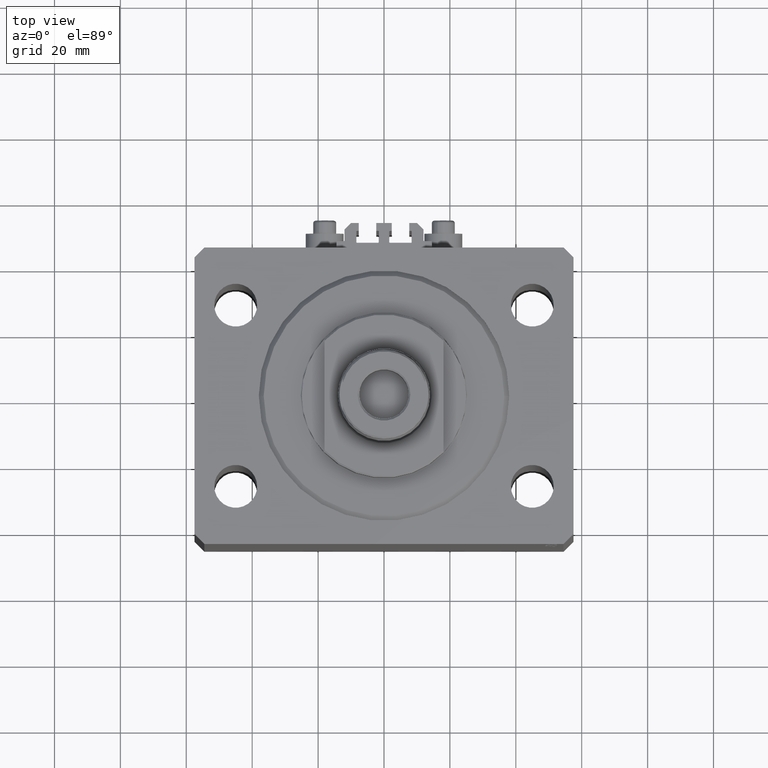
[diagram: clean part render]
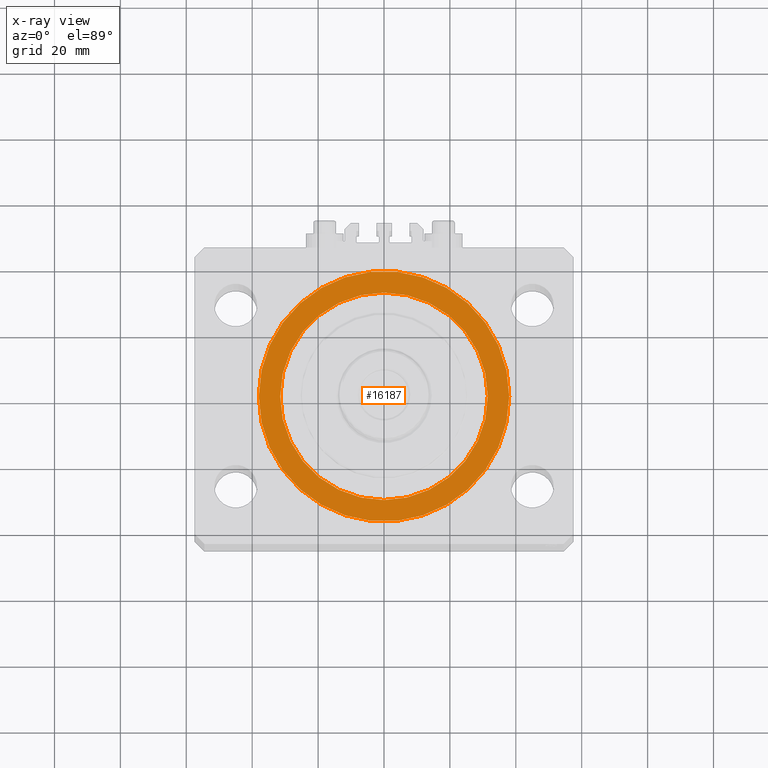
[diagram: x-ray — body ghosted, one internal face saturated and labeled with its STEP entity id]
A machine part, top view, then the same camera in x-ray: the body is ghosted and one INTERNAL B-rep face — a face not visible from any outside direction — is saturated and labeled: STEP entity #16187.
In plain terms, the highlighted planar face has unit normal (0, 0, 1).
Its self-contained STEP definition (entity closure, byte-faithful):
#93 = CIRCLE ( 'NONE', #26613, 38.00000000000000000 ) ;
#305 = CIRCLE ( 'NONE', #7893, 38.00000000000000000 ) ;
#502 = DIRECTION ( 'NONE',  ( 0.000000000000000000, 0.000000000000000000, 1.000000000000000000 ) ) ;
#505 = CARTESIAN_POINT ( 'NONE',  ( 38.00000000000000000, 0.000000000000000000, -12.00000000000000000 ) ) ;
#542 = ORIENTED_EDGE ( 'NONE', *, *, #19368, .T. ) ;
#1587 = CARTESIAN_POINT ( 'NONE',  ( -31.50000000000000000, 3.857637417314162689E-15, -12.00000000000000000 ) ) ;
#2269 = EDGE_LOOP ( 'NONE', ( #542, #40465 ) ) ;
#4056 = DIRECTION ( 'NONE',  ( 1.000000000000000000, 0.000000000000000000, 0.000000000000000000 ) ) ;
#4375 = EDGE_CURVE ( 'NONE', #10608, #20140, #8812, .T. ) ;
#6070 = DIRECTION ( 'NONE',  ( 0.000000000000000000, 0.000000000000000000, 1.000000000000000000 ) ) ;
#6306 = CARTESIAN_POINT ( 'NONE',  ( 0.000000000000000000, 0.000000000000000000, -12.00000000000000000 ) ) ;
#7893 = AXIS2_PLACEMENT_3D ( 'NONE', #10690, #502, #4056 ) ;
#8812 = CIRCLE ( 'NONE', #20948, 31.50000000000000000 ) ;
#9377 = CARTESIAN_POINT ( 'NONE',  ( 0.000000000000000000, 0.000000000000000000, -12.00000000000000000 ) ) ;
#10106 = DIRECTION ( 'NONE',  ( 0.000000000000000000, 0.000000000000000000, 1.000000000000000000 ) ) ;
#10608 = VERTEX_POINT ( 'NONE', #20297 ) ;
#10690 = CARTESIAN_POINT ( 'NONE',  ( 0.000000000000000000, 0.000000000000000000, -12.00000000000000000 ) ) ;
#11948 = EDGE_LOOP ( 'NONE', ( #32782, #26192 ) ) ;
#12476 = DIRECTION ( 'NONE',  ( 1.000000000000000000, 0.000000000000000000, -0.000000000000000000 ) ) ;
#13878 = DIRECTION ( 'NONE',  ( 1.000000000000000000, 0.000000000000000000, 0.000000000000000000 ) ) ;
#16187 = ADVANCED_FACE ( 'NONE', ( #34061, #38075 ), #27410, .T. ) ;
#16306 = EDGE_CURVE ( 'NONE', #20140, #10608, #22149, .T. ) ;
#19368 = EDGE_CURVE ( 'NONE', #42807, #22245, #93, .T. ) ;
#19631 = DIRECTION ( 'NONE',  ( 0.000000000000000000, 0.000000000000000000, 1.000000000000000000 ) ) ;
#20140 = VERTEX_POINT ( 'NONE', #1587 ) ;
#20297 = CARTESIAN_POINT ( 'NONE',  ( 31.50000000000000000, 0.000000000000000000, -12.00000000000000000 ) ) ;
#20948 = AXIS2_PLACEMENT_3D ( 'NONE', #42596, #10106, #45228 ) ;
#22149 = CIRCLE ( 'NONE', #34245, 31.50000000000000000 ) ;
#22245 = VERTEX_POINT ( 'NONE', #37305 ) ;
#26192 = ORIENTED_EDGE ( 'NONE', *, *, #16306, .F. ) ;
#26613 = AXIS2_PLACEMENT_3D ( 'NONE', #37155, #19631, #29582 ) ;
#26696 = EDGE_CURVE ( 'NONE', #22245, #42807, #305, .T. ) ;
#27410 = PLANE ( 'NONE',  #41056 ) ;
#29582 = DIRECTION ( 'NONE',  ( 1.000000000000000000, 0.000000000000000000, 0.000000000000000000 ) ) ;
#32782 = ORIENTED_EDGE ( 'NONE', *, *, #4375, .F. ) ;
#34061 = FACE_BOUND ( 'NONE', #11948, .T. ) ;
#34245 = AXIS2_PLACEMENT_3D ( 'NONE', #6306, #6070, #13878 ) ;
#37155 = CARTESIAN_POINT ( 'NONE',  ( 0.000000000000000000, 0.000000000000000000, -12.00000000000000000 ) ) ;
#37305 = CARTESIAN_POINT ( 'NONE',  ( -38.00000000000000000, 4.653657836759941941E-15, -12.00000000000000000 ) ) ;
#38075 = FACE_OUTER_BOUND ( 'NONE', #2269, .T. ) ;
#40465 = ORIENTED_EDGE ( 'NONE', *, *, #26696, .T. ) ;
#41056 = AXIS2_PLACEMENT_3D ( 'NONE', #9377, #44735, #12476 ) ;
#42596 = CARTESIAN_POINT ( 'NONE',  ( 0.000000000000000000, 0.000000000000000000, -12.00000000000000000 ) ) ;
#42807 = VERTEX_POINT ( 'NONE', #505 ) ;
#44735 = DIRECTION ( 'NONE',  ( 0.000000000000000000, 0.000000000000000000, 1.000000000000000000 ) ) ;
#45228 = DIRECTION ( 'NONE',  ( 1.000000000000000000, 0.000000000000000000, 0.000000000000000000 ) ) ;